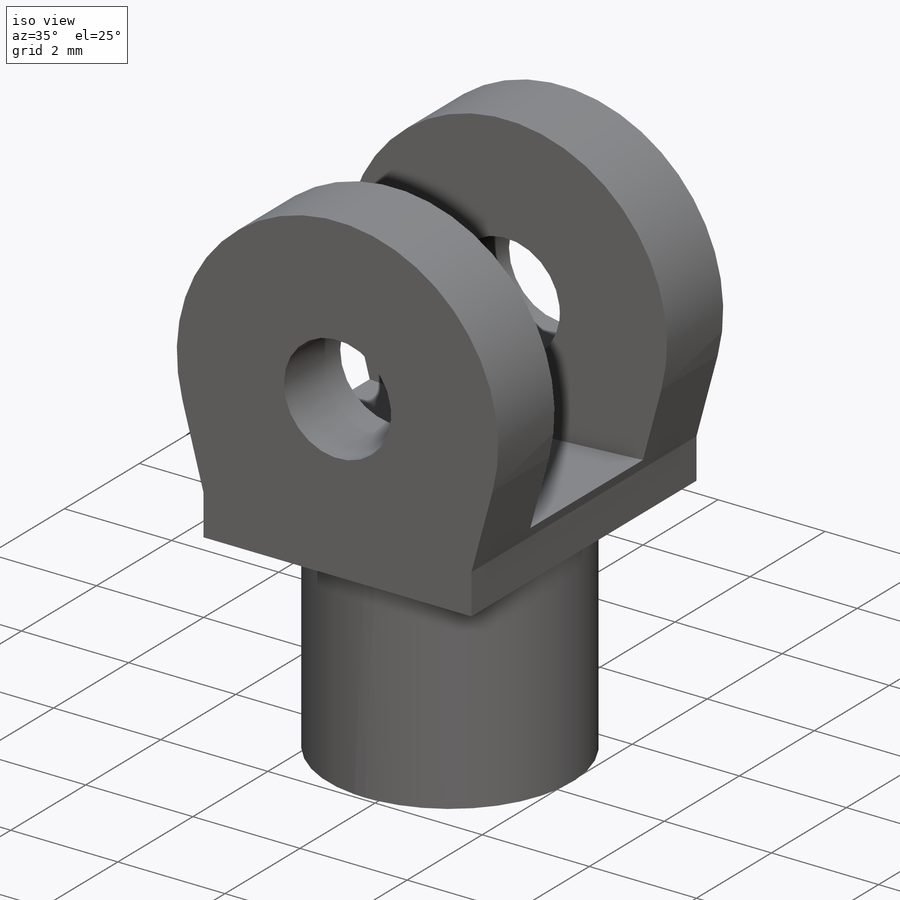
[diagram: iso view]
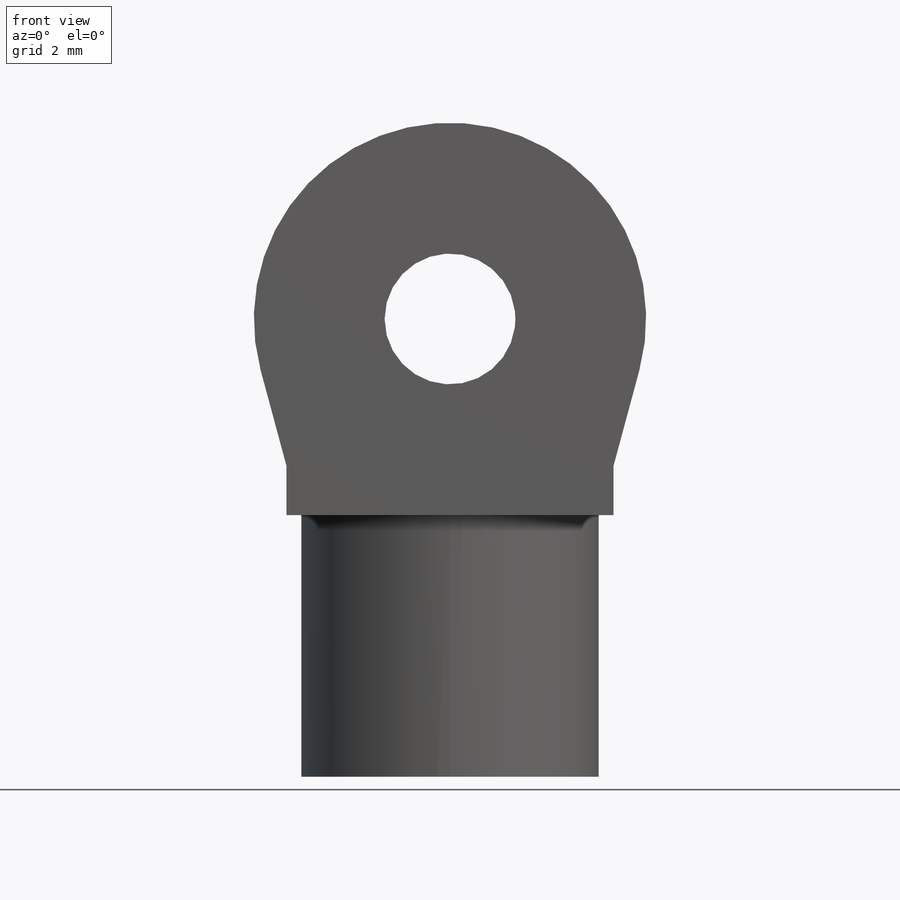
[diagram: front view]
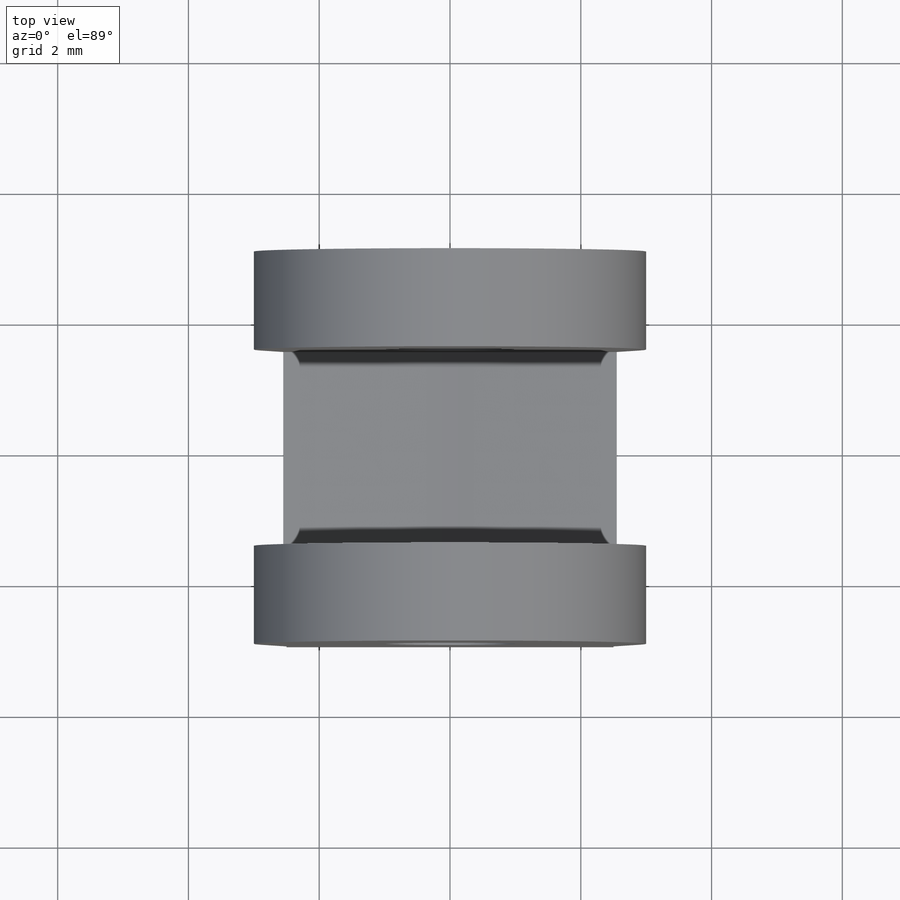
[diagram: top view]
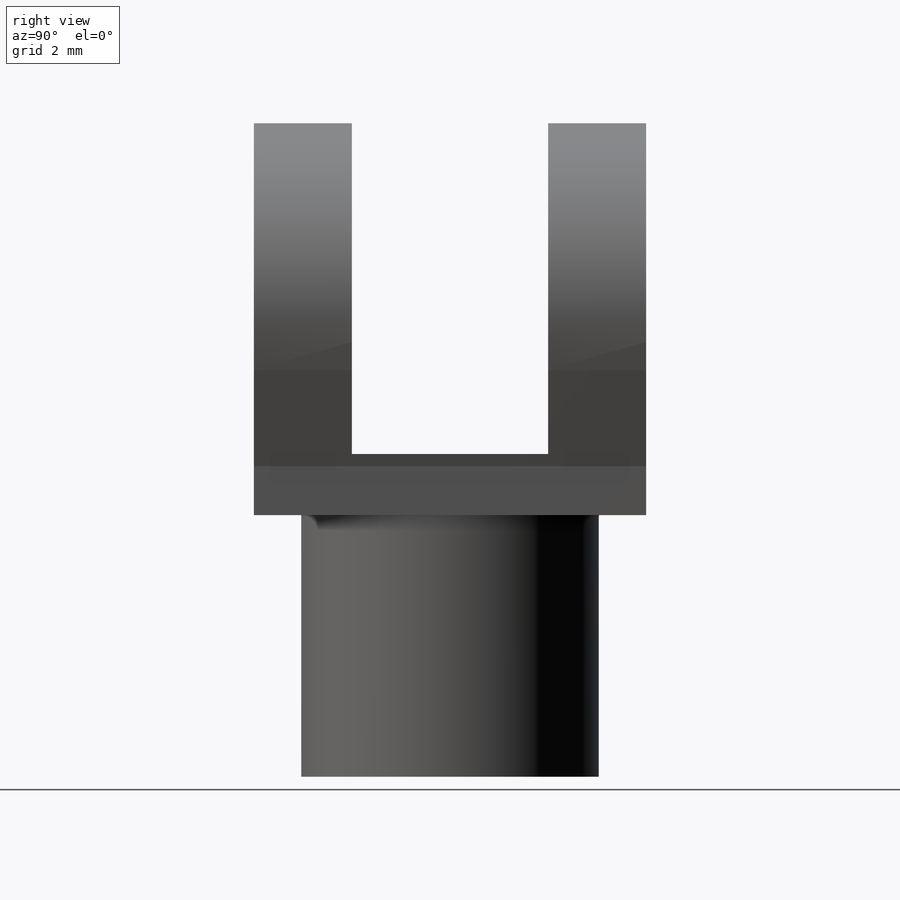
[diagram: right view]
SOLIDWORKS PART (.sldprt)
format: sldprt  version: not decoded by parser v0  size: 202,752 bytes
history: native  units: mm
features: sketch x4, extrude x3, material x1, cut_extrude x1 (+13 scaffold rows collapsed)
feature tree (22):
  scaffold x13  (default folders/planes/origin — collapsed)
  material  "Material <not specified>"
  sketch  "Sketch8"  dims[D1=4.55mm]
  extrude  "Boss-Extrude4"  Depth=4mm
  sketch  "Sketch9"  dims[D1=6.0mm D2=5.0mm]
  extrude  "Boss-Extrude5"  Depth=0.75mm
  sketch  "Sketch10"  dims[D1=2.0mm D3=3.0mm D2=2.25mm]
  extrude  "Boss-Extrude6"  Depth=6mm
  sketch  "Sketch11"  dims[D1=2.2mm D2=1.25mm D3=35.0mm D4=~4.234269mm]
  cut_extrude  "Cut-Extrude2"  Depth=3mm
decode coverage: 8 of 8 modeling features carry decoded parameters
note: ~ marks probable driven/reference dimensions
note: suppression state not decoded; provenance and decode notes live in map.json
